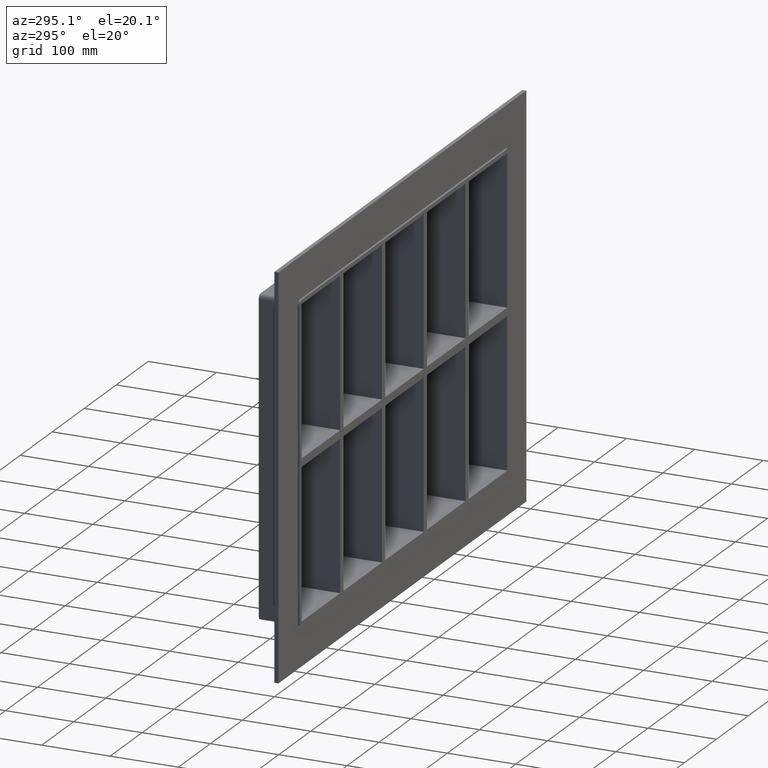
[diagram: clean part render]
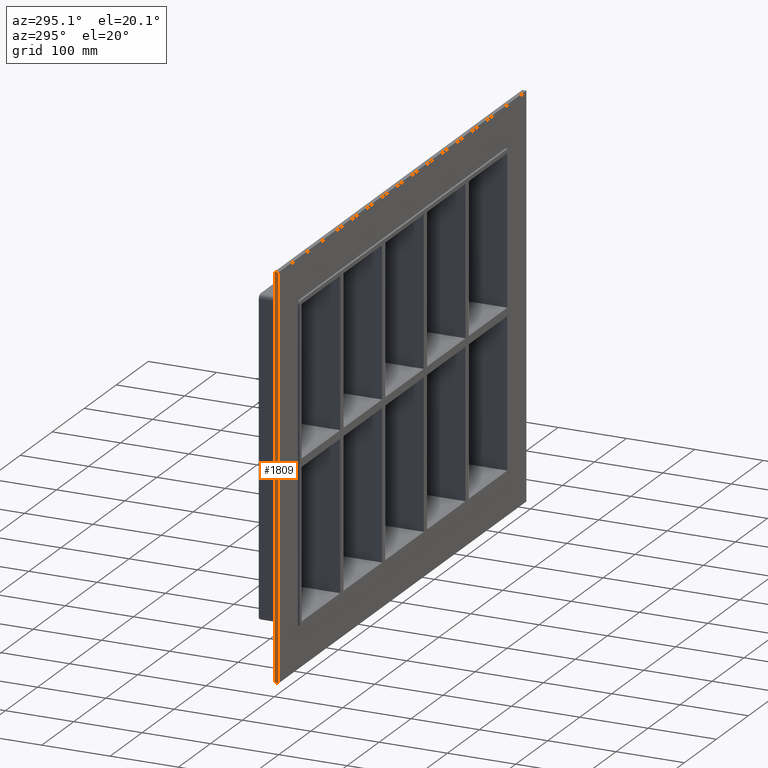
[diagram: same view with one face highlighted and labeled with its STEP entity id]
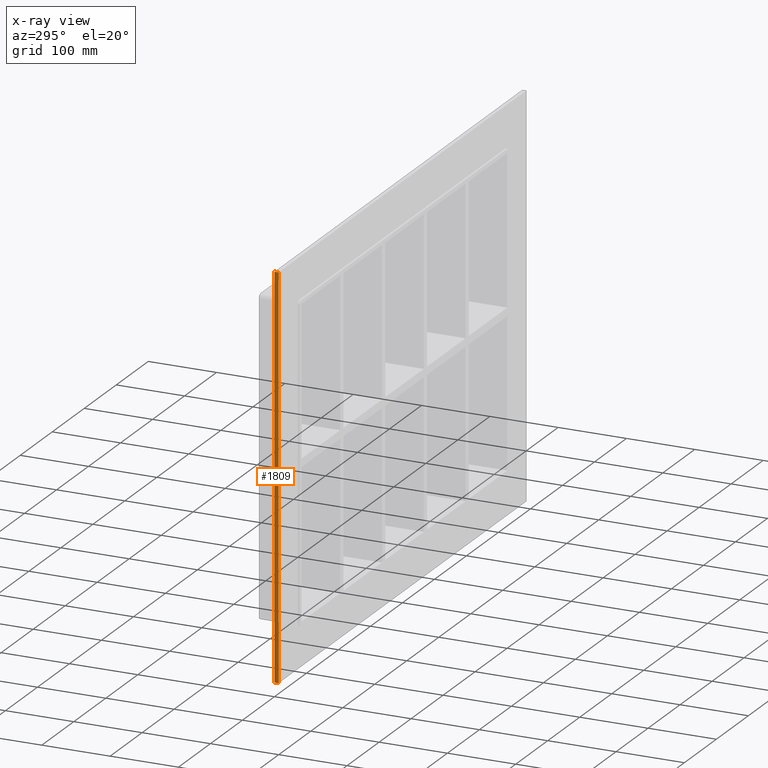
[diagram: x-ray of the same camera — body ghosted, the highlighted face saturated]
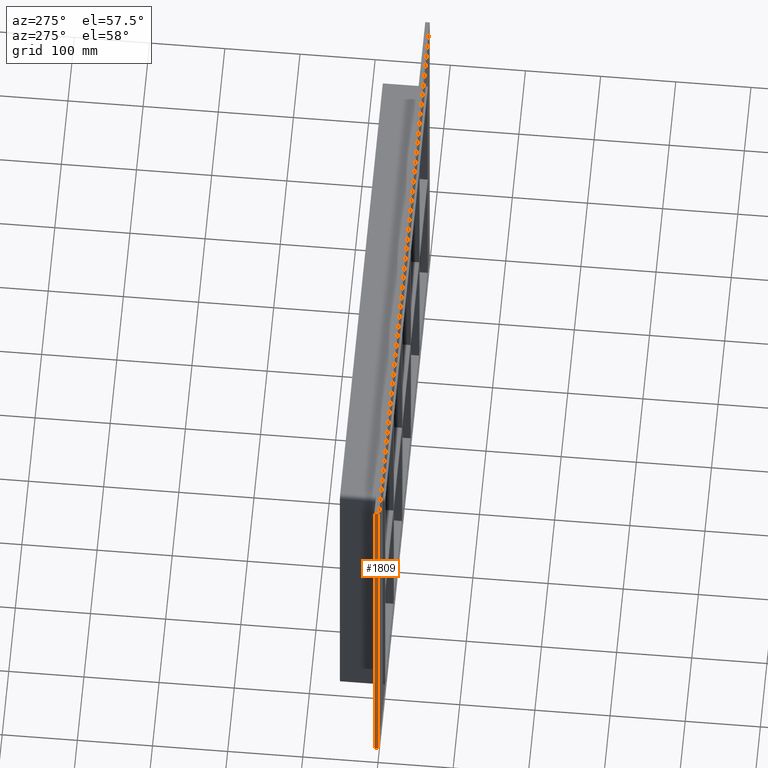
[diagram: same view with one face highlighted and labeled with its STEP entity id]
A machine part, auxiliary view. The second image highlights one B-rep face of the part: STEP entity #1809.
The next image is the same camera in x-ray: the body ghosted, the highlighted face saturated — about 0% of this face is hidden behind the body in this view.
A second angle (auxiliary view) of the same face is appended — the face is thin or edge-on in the first view.
In plain terms, the highlighted planar face has unit normal (-1, 0, 0).
Its self-contained STEP definition (entity closure, byte-faithful):
#1573=CARTESIAN_POINT('',(-387.25000000000011,6.000000000000001,290.00000000000006));
#1574=VERTEX_POINT('',#1573);
#1591=CARTESIAN_POINT('',(-387.25000000000011,6.000000000000001,-290.00000000000006));
#1592=VERTEX_POINT('',#1591);
#1599=CARTESIAN_POINT('',(-387.25000000000011,6.000000000000001,-290.00000000000006));
#1600=DIRECTION('',(0.0,0.0,1.0));
#1601=VECTOR('',#1600,580.00000000000011);
#1602=LINE('',#1599,#1601);
#1603=EDGE_CURVE('',#1592,#1574,#1602,.T.);
#1683=CARTESIAN_POINT('',(-387.25000000000011,0.0,290.00000000000006));
#1684=VERTEX_POINT('',#1683);
#1693=CARTESIAN_POINT('',(-387.25000000000011,0.0,-290.00000000000006));
#1694=VERTEX_POINT('',#1693);
#1695=CARTESIAN_POINT('',(-387.25000000000011,0.0,-290.00000000000006));
#1696=DIRECTION('',(0.0,0.0,1.0));
#1697=VECTOR('',#1696,580.00000000000011);
#1698=LINE('',#1695,#1697);
#1699=EDGE_CURVE('',#1694,#1684,#1698,.T.);
#1788=CARTESIAN_POINT('',(-387.25000000000011,0.0,-290.00000000000006));
#1789=DIRECTION('',(-1.0,0.0,0.0));
#1790=DIRECTION('',(0.0,0.0,1.0));
#1791=AXIS2_PLACEMENT_3D('',#1788,#1789,#1790);
#1792=PLANE('',#1791);
#1793=ORIENTED_EDGE('',*,*,#1699,.T.);
#1794=CARTESIAN_POINT('',(-387.25000000000011,0.0,290.00000000000006));
#1795=DIRECTION('',(0.0,1.0,0.0));
#1796=VECTOR('',#1795,6.000000000000001);
#1797=LINE('',#1794,#1796);
#1798=EDGE_CURVE('',#1684,#1574,#1797,.T.);
#1799=ORIENTED_EDGE('',*,*,#1798,.T.);
#1800=ORIENTED_EDGE('',*,*,#1603,.F.);
#1801=CARTESIAN_POINT('',(-387.25000000000011,0.0,-290.00000000000006));
#1802=DIRECTION('',(0.0,1.0,0.0));
#1803=VECTOR('',#1802,6.000000000000001);
#1804=LINE('',#1801,#1803);
#1805=EDGE_CURVE('',#1694,#1592,#1804,.T.);
#1806=ORIENTED_EDGE('',*,*,#1805,.F.);
#1807=EDGE_LOOP('',(#1793,#1799,#1800,#1806));
#1808=FACE_OUTER_BOUND('',#1807,.T.);
#1809=ADVANCED_FACE('',(#1808),#1792,.T.);